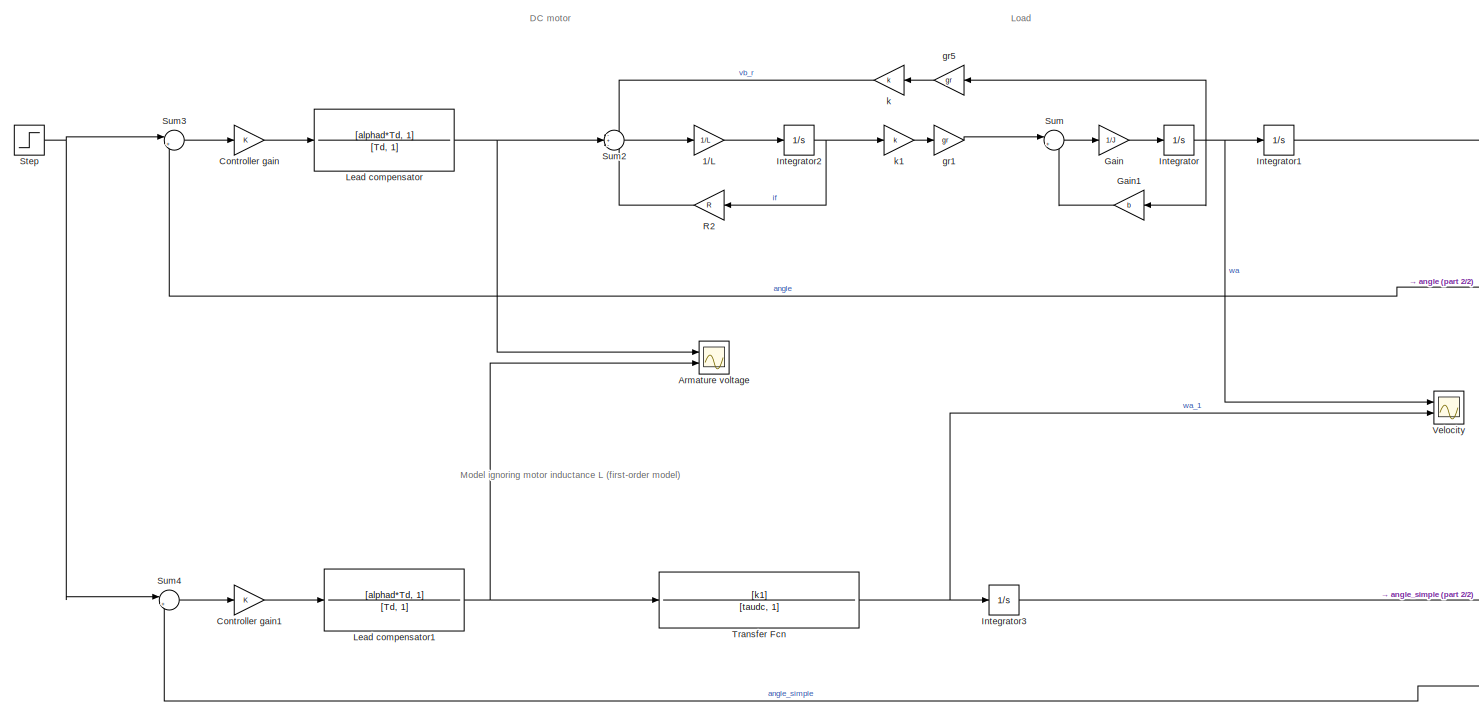
[diagram: root canvas - part 1/2, most of the canvas]
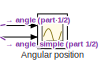
[diagram: root canvas - part 2/2, middle right region]
MODEL slx_0ad593bdfa5d
KIND model
CONFIG AbsTol = auto
CONFIG EnableMultiTasking = off
CONFIG FixedStep = auto
CONFIG MaxStep = 1e-4
CONFIG MinStep = auto
CONFIG RelTol = 1e-3
CONFIG SampleTimeConstraint = Unconstrained
CONFIG Solver = VariableStepAuto
CONFIG SolverName = VariableStepAuto
CONFIG StartTime = 0.0
CONFIG StopTime = 0.5
BLOCK [Gain] 1//L
  Gain = 1/L
BLOCK [Scope] Angular position
  Floating = off
  NumInputPorts = 2
  Ports = [2]
  ScopeSpecificationString = Simulink.scopes.TimeScopeBlockCfg('CurrentConfiguration', extmgr.ConfigurationSet(extmgr.Configuration('Core','General UI',true),extmgr.Configuration('Core','Source UI',true),extmgr.Configuration('Sources','WiredSimulink',true),extmgr.Configuration('Visuals','Time Domain',true,'SerializedDisplays',{struct('MinYLimReal','-0.09009','MaxYLimReal','0.81083','YLabelReal','','MinYLimMag','0.00000','MaxY...<+1810ch>
BLOCK [Scope] Armature voltage
  Floating = off
  NumInputPorts = 2
  Ports = [2]
  ScopeSpecificationString = Simulink.scopes.TimeScopeBlockCfg('CurrentConfiguration', extmgr.ConfigurationSet(extmgr.Configuration('Core','General UI',true),extmgr.Configuration('Core','Source UI',true),extmgr.Configuration('Sources','WiredSimulink',true,'DataLoggingVariableName','ScopeData1'),extmgr.Configuration('Visuals','Time Domain',true,'SerializedDisplays',{struct('MinYLimReal','-207963.5584','MaxYLimReal','540274.095...<+1842ch>
BLOCK [Gain] Controller gain
  Gain = K
BLOCK [Gain] Controller gain1
  Gain = K
BLOCK [Gain] Gain
  Gain = 1/J
BLOCK [Gain] Gain1
  Gain = b
BLOCK [Integrator] Integrator
  Ports = [1, 1]
BLOCK [Integrator] Integrator1
  Ports = [1, 1]
BLOCK [Integrator] Integrator2
  Ports = [1, 1]
BLOCK [Integrator] Integrator3
  Ports = [1, 1]
BLOCK [TransferFcn] Lead compensator
  Denominator = [Td,  1]
  Numerator = [alphad*Td, 1]
BLOCK [TransferFcn] Lead compensator1
  Denominator = [Td,  1]
  Numerator = [alphad*Td, 1]
BLOCK [Gain] R2
  Gain = R
BLOCK [Step] Step
  After = pi/6
  SampleTime = 0
  Time = 0
BLOCK [Sum] Sum
  Inputs = |+-
  Ports = [2, 1]
BLOCK [Sum] Sum2
  Inputs = -+-
  Ports = [3, 1]
BLOCK [Sum] Sum3
  Inputs = |+-
  Ports = [2, 1]
BLOCK [Sum] Sum4
  Inputs = |+-
  Ports = [2, 1]
BLOCK [TransferFcn] Transfer Fcn
  Denominator = [taudc, 1]
  Numerator = [k1]
BLOCK [Scope] Velocity
  Floating = off
  NumInputPorts = 2
  Ports = [2]
  ScopeSpecificationString = Simulink.scopes.TimeScopeBlockCfg('CurrentConfiguration', extmgr.ConfigurationSet(extmgr.Configuration('Core','General UI',true),extmgr.Configuration('Core','Source UI',true),extmgr.Configuration('Sources','WiredSimulink',true,'DataLoggingVariableName','ScopeData2'),extmgr.Configuration('Visuals','Time Domain',true,'SerializedDisplays',{struct('MinYLimReal','-142.95989','MaxYLimReal','259.99245','...<+1408ch>
BLOCK [Gain] gr1
  Gain = gr
BLOCK [Gain] gr5
  Gain = gr
BLOCK [Gain] k
  Gain = k
BLOCK [Gain] k1
  Gain = k
ANNOTATION (root): DC motor
ANNOTATION (root): Load
ANNOTATION (root): Model ignoring motor inductance L (first-order model)
LINE 1//L:1 -> Integrator2:1
LINE Controller gain1:1 -> Lead compensator1:1
LINE Controller gain:1 -> Lead compensator:1
LINE Gain1:1 -> Sum:2
LINE Gain:1 -> Integrator:1
NET Integrator1:1 -> Angular position:1, Sum3:2
NET Integrator2:1 -> R2:1, k1:1
NET Integrator3:1 -> Angular position:2, Sum4:2
NET Integrator:1 -> Gain1:1, Integrator1:1, Velocity:1, gr5:1
NET Lead compensator1:1 -> Armature voltage:2, Transfer Fcn:1
NET Lead compensator:1 -> Armature voltage:1, Sum2:2
LINE R2:1 -> Sum2:3
NET Step:1 -> Sum3:1, Sum4:1
LINE Sum2:1 -> 1//L:1
LINE Sum3:1 -> Controller gain:1
LINE Sum4:1 -> Controller gain1:1
LINE Sum:1 -> Gain:1
NET Transfer Fcn:1 -> Integrator3:1, Velocity:2
LINE gr1:1 -> Sum:1
LINE gr5:1 -> k:1
LINE k1:1 -> gr1:1
LINE k:1 -> Sum2:1
note: NET lines group one-source signal fan-out (src -> all destinations, sorted); 1:1 wires keep LINE
